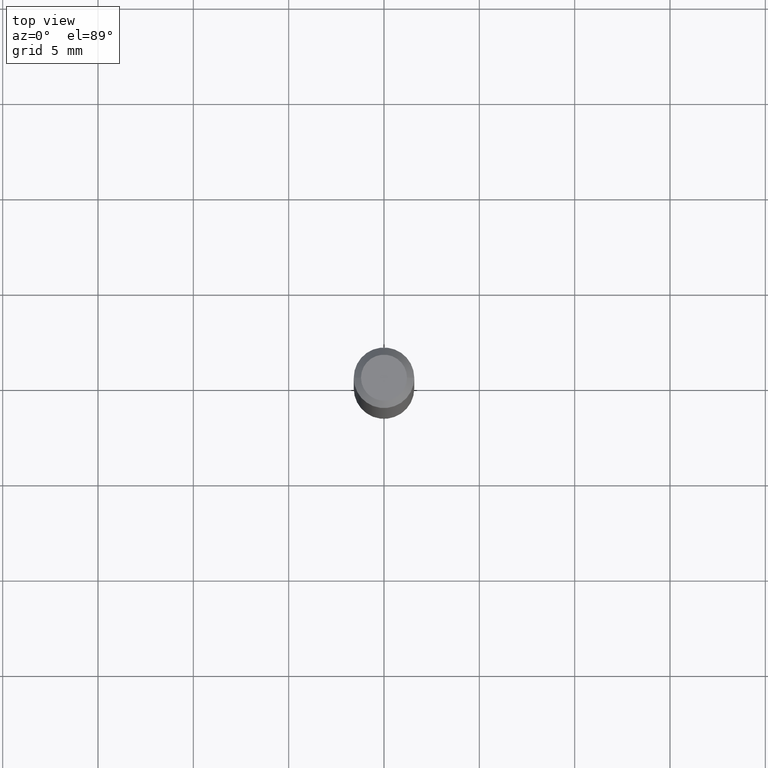
[diagram: clean part render]
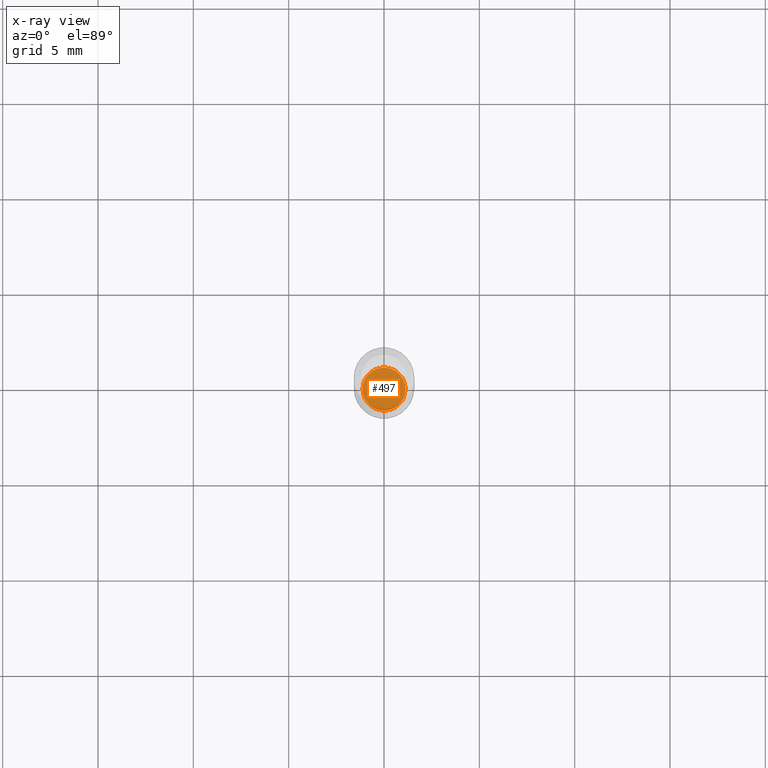
[diagram: x-ray — body ghosted, one internal face saturated and labeled with its STEP entity id]
A machine part, top view, then the same camera in x-ray: the body is ghosted and one INTERNAL B-rep face — a face not visible from any outside direction — is saturated and labeled: STEP entity #497.
In plain terms, the highlighted planar face has unit normal (-0, 0, 1).
Its self-contained STEP definition (entity closure, byte-faithful):
#73 = CARTESIAN_POINT ( 'NONE',  ( -0.04449999999999999095, -4.447031282933537610E-15, -1.364999999999999991 ) ) ;
#90 = DIRECTION ( 'NONE',  ( 1.000000000000000000, -6.982962677686265922E-15, 4.876176775795935793E-29 ) ) ;
#117 = CARTESIAN_POINT ( 'NONE',  ( 3.338064920442711836E-29, -4.765872027520893280E-15, -1.364999999999999991 ) ) ;
#145 = VERTEX_POINT ( 'NONE', #73 ) ;
#155 = CARTESIAN_POINT ( 'NONE',  ( 0.04449999999999999095, -5.076613866677931960E-15, -1.364999999999999991 ) ) ;
#176 = VERTEX_POINT ( 'NONE', #155 ) ;
#190 = CIRCLE ( 'NONE', #419, 0.04449999999999999095 ) ;
#191 = DIRECTION ( 'NONE',  ( 1.000000000000000000, -6.982962677686258033E-15, 0.000000000000000000 ) ) ;
#200 = EDGE_CURVE ( 'NONE', #176, #145, #512, .T. ) ;
#230 = CARTESIAN_POINT ( 'NONE',  ( 3.338064920442711836E-29, -4.765872027520893280E-15, -1.364999999999999991 ) ) ;
#241 = EDGE_LOOP ( 'NONE', ( #506, #456 ) ) ;
#264 = DIRECTION ( 'NONE',  ( -2.445468806185136597E-29, 3.491481338843145583E-15, 1.000000000000000000 ) ) ;
#273 = FACE_OUTER_BOUND ( 'NONE', #241, .T. ) ;
#275 = AXIS2_PLACEMENT_3D ( 'NONE', #117, #264, #435 ) ;
#305 = PLANE ( 'NONE',  #513 ) ;
#391 = CARTESIAN_POINT ( 'NONE',  ( 3.338064920442711836E-29, -4.765872027520893280E-15, -1.364999999999999991 ) ) ;
#419 = AXIS2_PLACEMENT_3D ( 'NONE', #391, #511, #191 ) ;
#435 = DIRECTION ( 'NONE',  ( 1.000000000000000000, -6.982962677686258033E-15, 0.000000000000000000 ) ) ;
#442 = DIRECTION ( 'NONE',  ( -2.438088387897960049E-29, 3.491481338843145188E-15, 1.000000000000000000 ) ) ;
#456 = ORIENTED_EDGE ( 'NONE', *, *, #503, .F. ) ;
#497 = ADVANCED_FACE ( 'NONE', ( #273 ), #305, .F. ) ;
#503 = EDGE_CURVE ( 'NONE', #145, #176, #190, .T. ) ;
#506 = ORIENTED_EDGE ( 'NONE', *, *, #200, .F. ) ;
#511 = DIRECTION ( 'NONE',  ( -2.445468806185136597E-29, 3.491481338843145583E-15, 1.000000000000000000 ) ) ;
#512 = CIRCLE ( 'NONE', #275, 0.04449999999999999095 ) ;
#513 = AXIS2_PLACEMENT_3D ( 'NONE', #230, #442, #90 ) ;